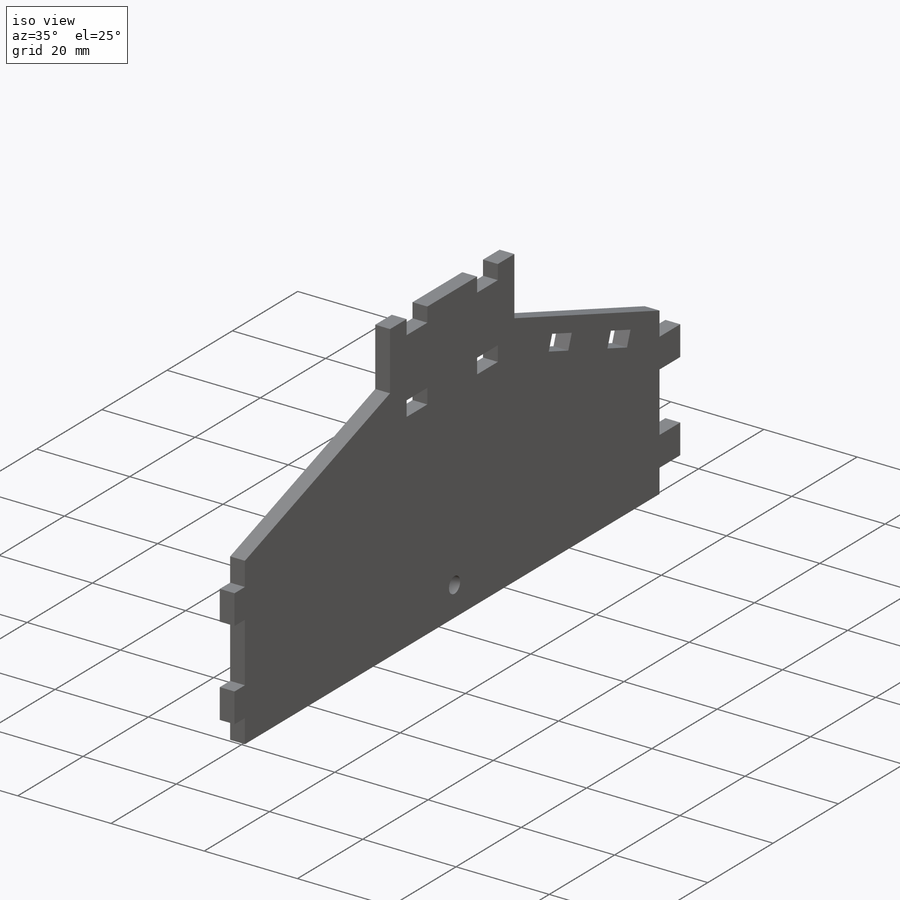
[diagram: iso view]
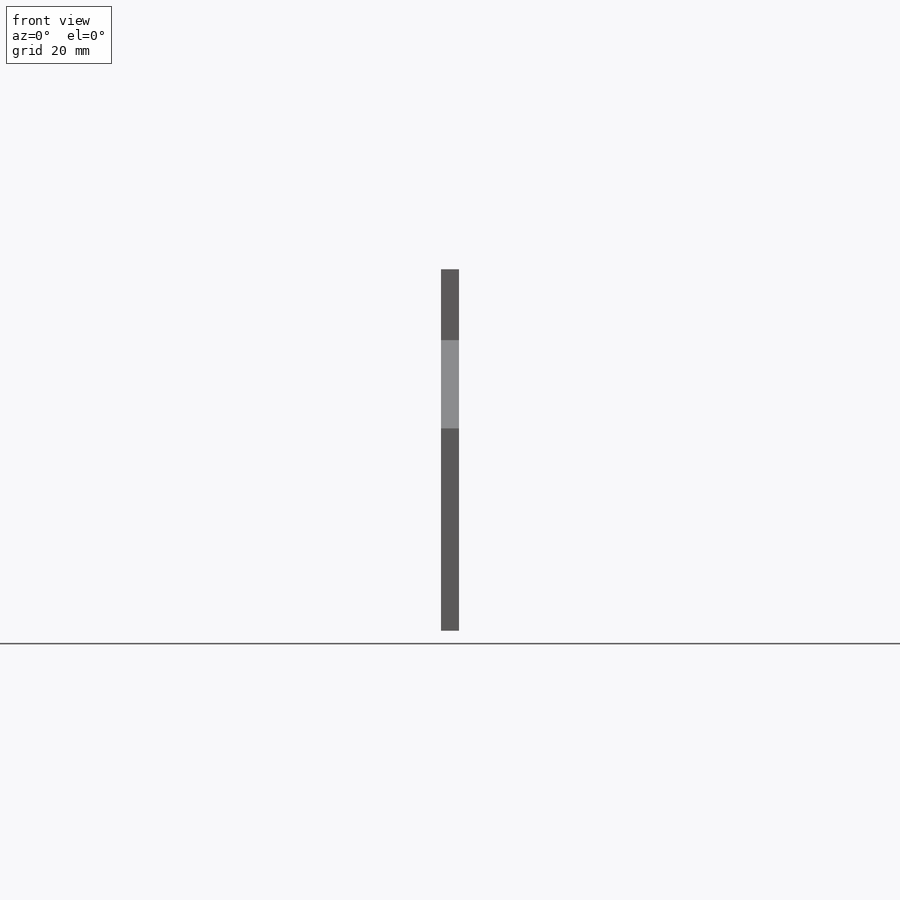
[diagram: front view]
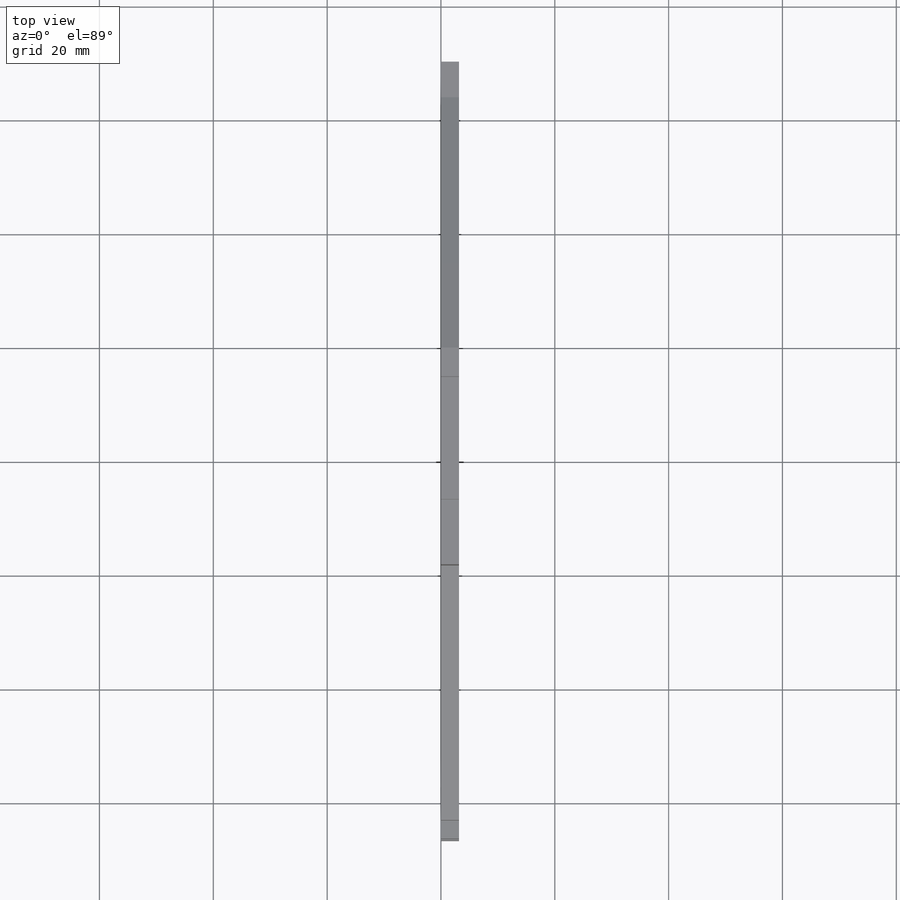
[diagram: top view]
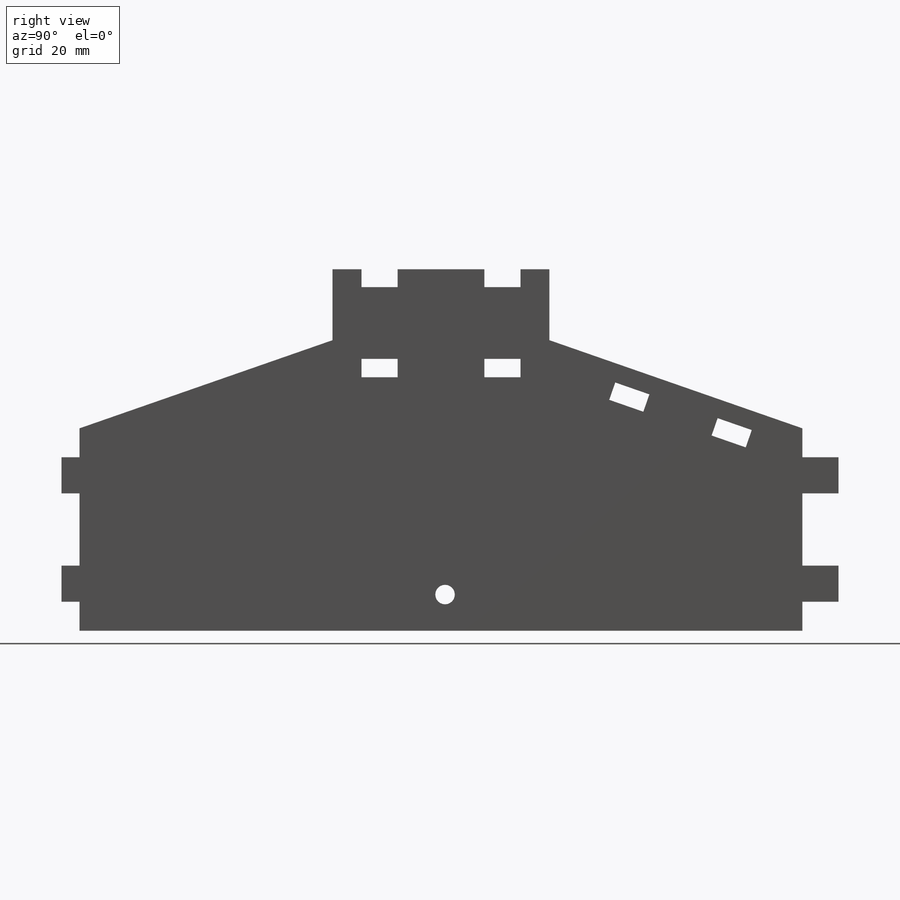
[diagram: right view]
SOLIDWORKS PART (.sldprt)
format: sldprt  version: not decoded by parser v0  size: 374,272 bytes
history: native  units: mm
features: sketch x7, cut_extrude x4, extrude x3, material x1, mirror x1 (+16 scaffold rows collapsed)
feature tree (32):
  scaffold x16  (default folders/planes/origin — collapsed)
  material  "Material <not specified>"
  sketch  "Sketch1"  dims[D1=38.1mm D2=63.5mm]
  extrude  "Boss-Extrude1"  Depth=3.175mm
  sketch  "Sketch2"  dims[D1=7.62mm D2=7.62mm D3=6.35mm D4=6.35mm D5=3.1242mm D6=3.1242mm D7=7.62mm]
  cut_extrude  "Cut-Extrude1"  [1 undecoded]
  sketch  "Sketch3"  dims[D1=6.35mm D2=6.35mm D3=3.2258mm D4=3.2258mm D5=7.62mm D6=7.62mm D7=15.748mm]
  cut_extrude  "cut for tabs servo plate"  [1 undecoded]
  sketch  "Sketch4"  dims[D1=35.56mm D2=44.45mm]
  extrude  "base extension"  Depth=3.175mm
  mirror  "Mirror1"
  sketch  "Sketch5"  dims[c1.D1=6.35mm c1.D2=6.35mm c1.D3=6.35mm c1.D4=6.35mm c1.D5=6.35mm c1.D6=6.35mm c1.D7=3.2258mm c1.D8=6.35mm c1.D9=6.35mm c1.D10=3.2258mm c2.D9=3.2258mm c2.D10=6.35mm c2.D7=3.175mm c2.D8=6.35mm c3.D9=6.35mm c3.D10=3.175mm c3.D11=6.35mm c3.D12=6.35mm]
  extrude  "tabs"  Depth=3.175mm
  sketch  "Sketch6"  dims[D1=3.2258mm D2=3.2258mm D3=3.2131mm D4=6.35mm D5=6.35mm D6=12.7mm D7=8.89mm]
  cut_extrude  "cut for neck cover tabs"  [1 undecoded]
  sketch  "Sketch7"  dims[D1=3.429mm D2=5.842mm D3=25.4mm]
  cut_extrude  "Cut-Extrude2"  [1 undecoded]
decode coverage: 10 of 15 modeling features carry decoded parameters
note: 4 parameter values undecoded
summary: no parameter record found for 4 features
note: suppression state not decoded; provenance and decode notes live in map.json
